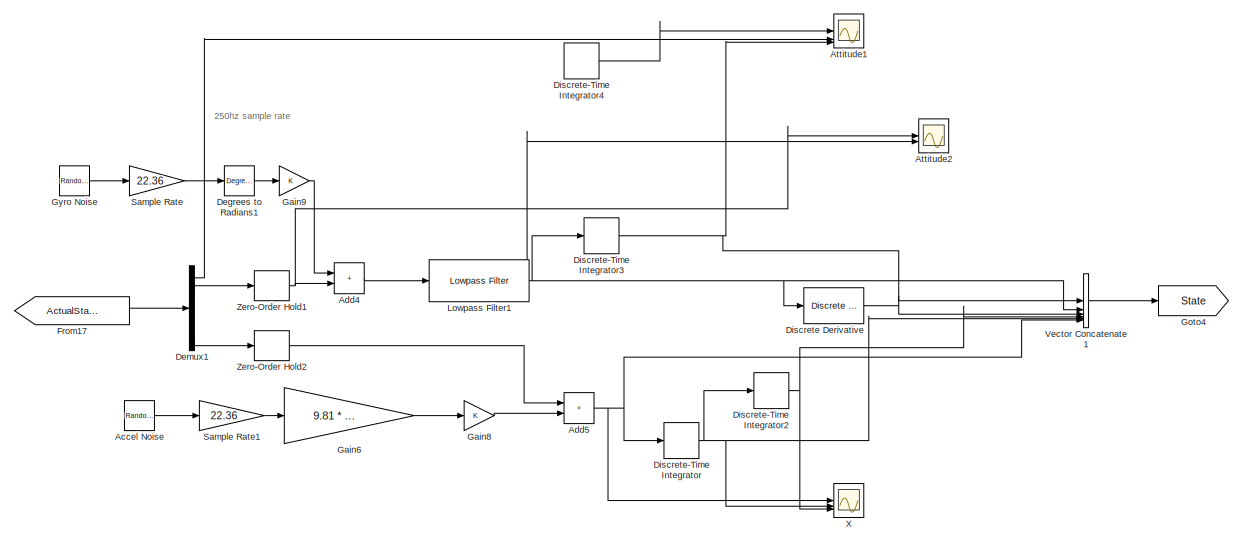
[diagram: root canvas - part 1/7, top center region]
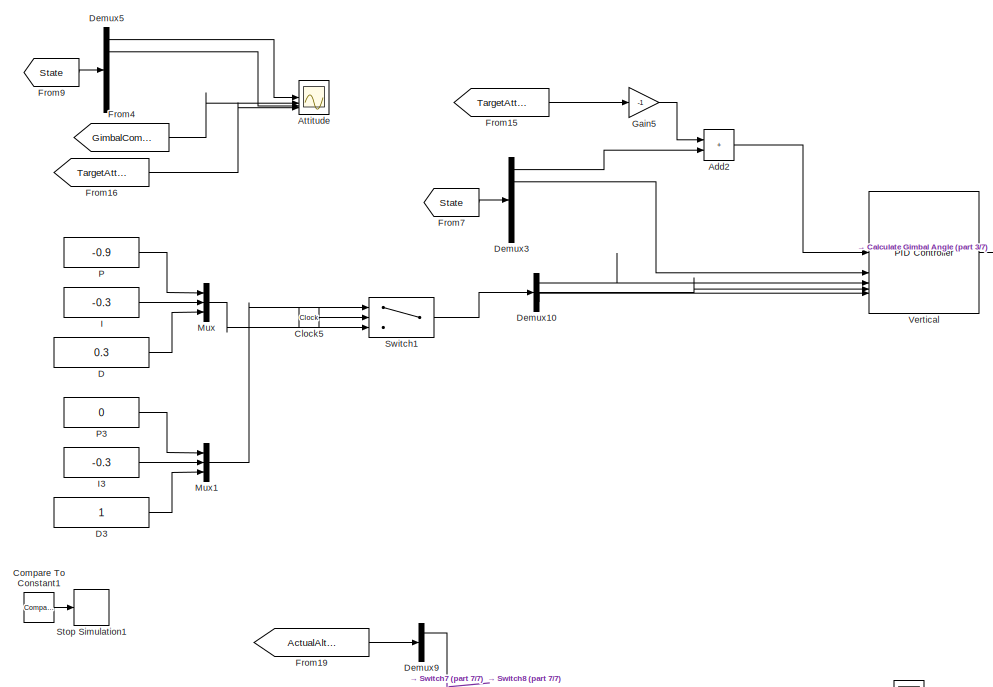
[diagram: root canvas - part 2/7, middle left region]
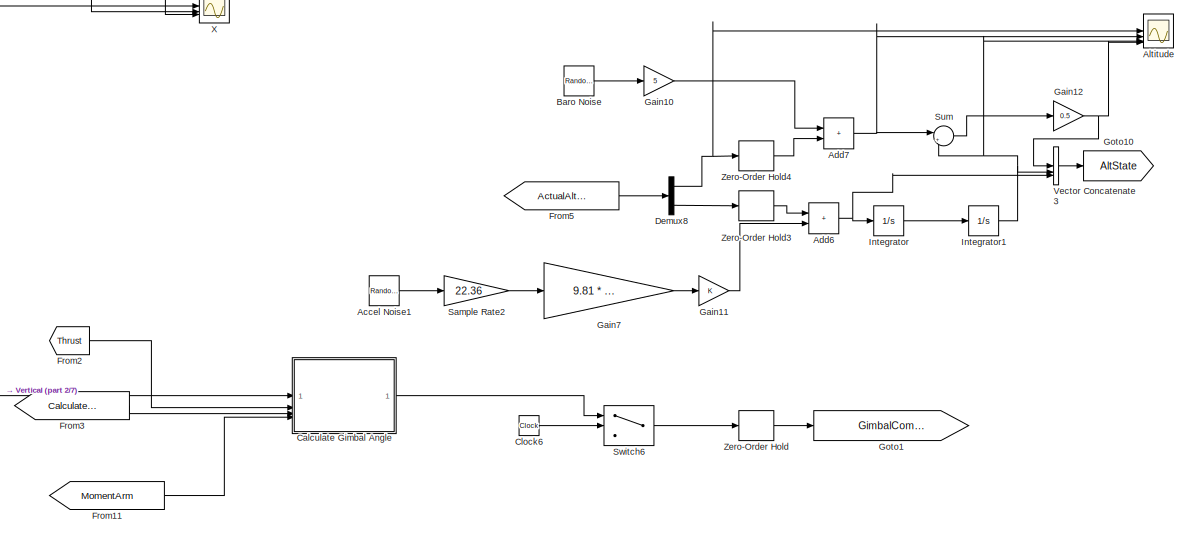
[diagram: root canvas - part 3/7, central region]
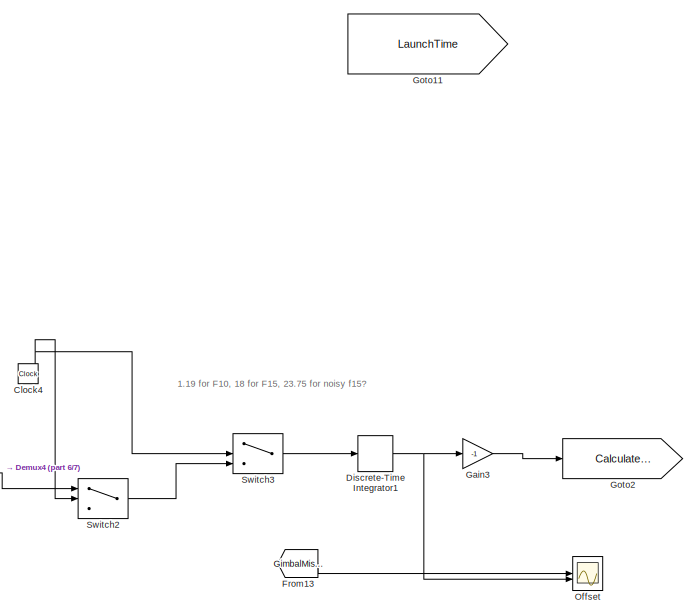
[diagram: root canvas - part 4/7, middle right region]
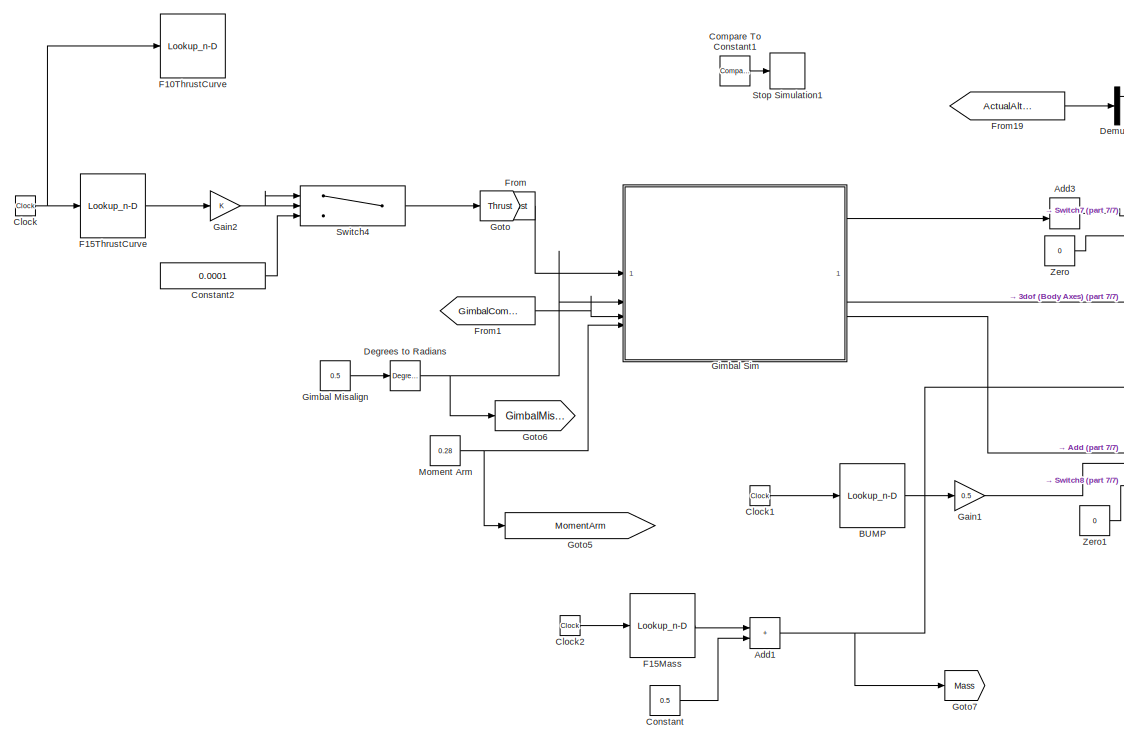
[diagram: root canvas - part 5/7, bottom left region]
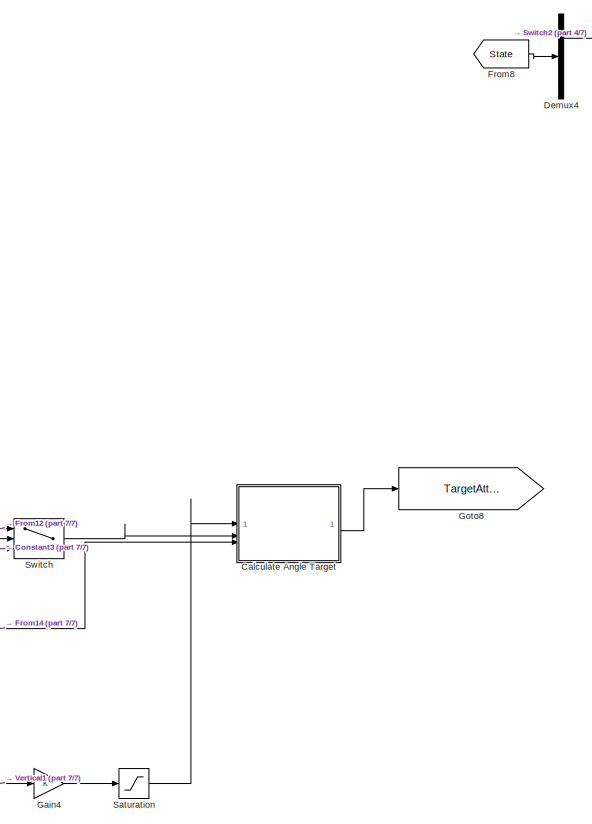
[diagram: root canvas - part 6/7, bottom right region]
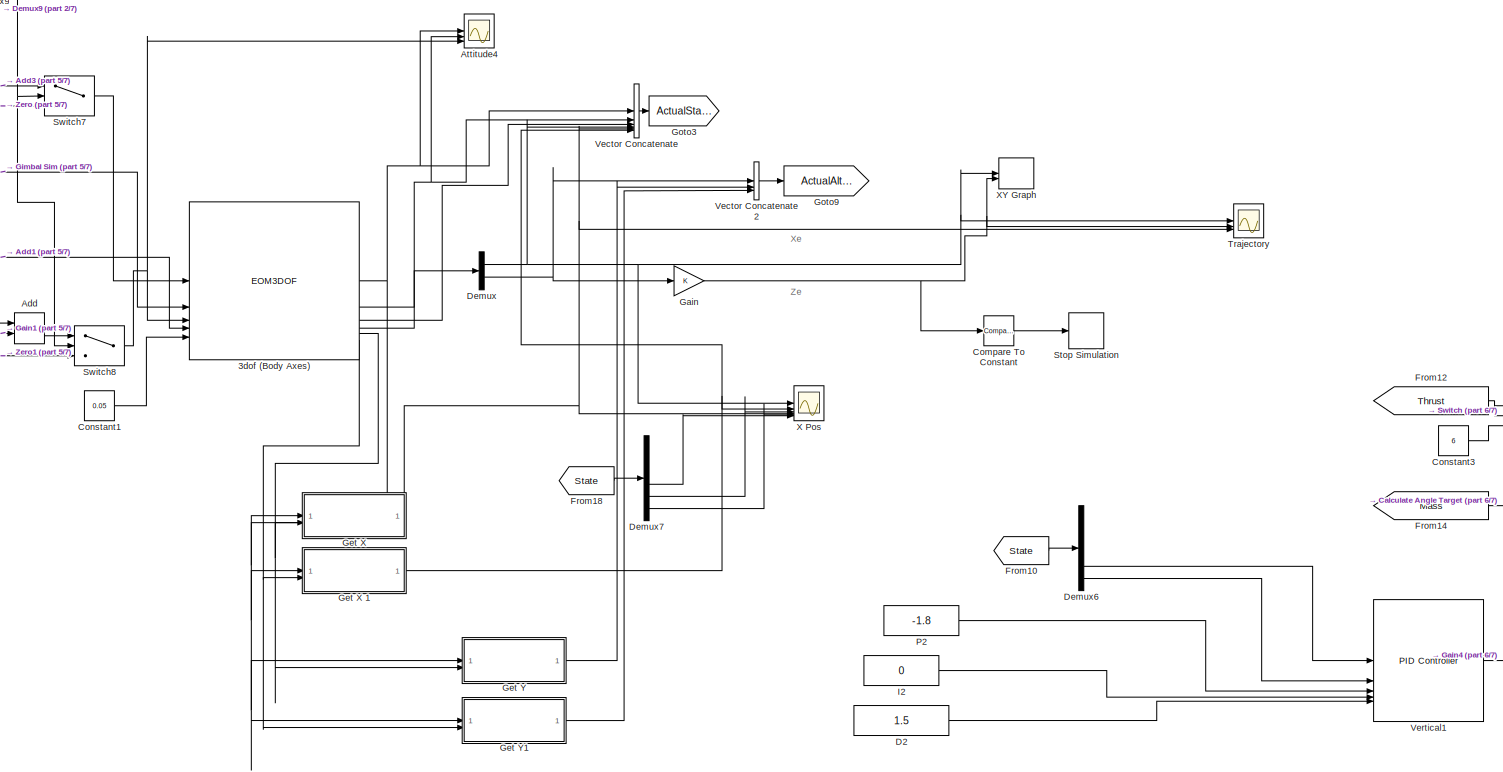
[diagram: root canvas - part 7/7, bottom center region]
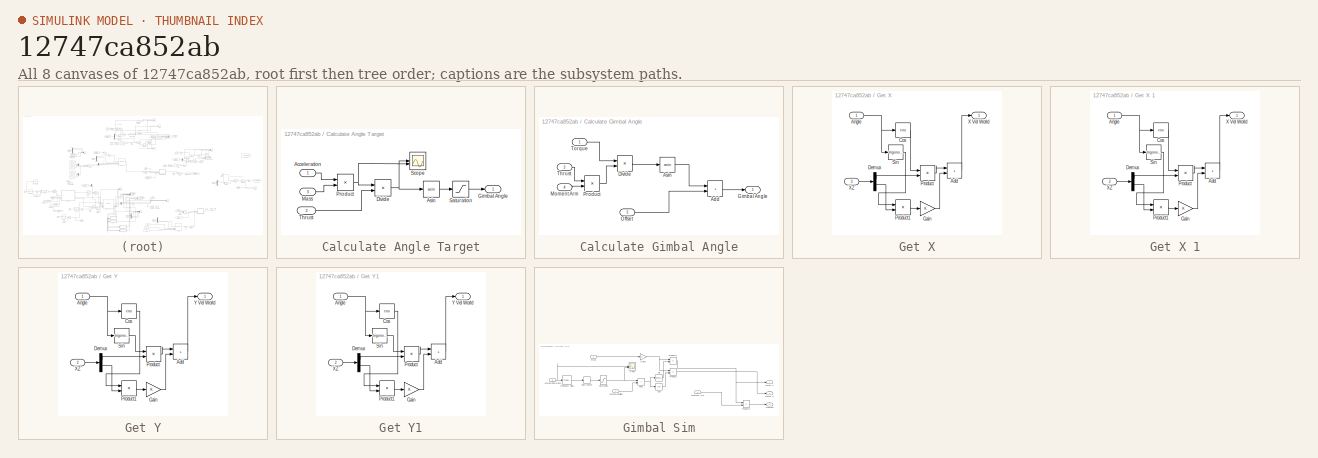
[diagram: thumbnail index - all 8 canvases of the model, root first then tree order]
MODEL slx_12747ca852ab
KIND model
CONFIG AbsTol = auto
CONFIG EnableMultiTasking = off
CONFIG FixedStep = 0.0001
CONFIG MaxStep = 0.0001
CONFIG MinStep = auto
CONFIG RelTol = 1e-3
CONFIG SampleTimeConstraint = Unconstrained
CONFIG SolverName = VariableStepAuto
CONFIG StartTime = 0.0
CONFIG StopTime = 30
WORKSPACE source: mxarray member
WORKSPACE Mass = 0.5
BLOCK [EOM3DOF] 3dof (Body Axes)
  Iyy = 0.05
  abi_flag = on
  g = -9.81
  mass = 0.5
  mtype = Custom Variable
  theta_ini = 0.09
  v_ini = 0
BLOCK [RandomNumber] Accel Noise
  SampleTime = 0.002
  Variance = 70
BLOCK [RandomNumber] Accel Noise1
  SampleTime = 0.002
  Variance = 70
BLOCK [Sum] Add
  IconShape = rectangular
BLOCK [Sum] Add1
  IconShape = rectangular
BLOCK [Sum] Add2
  IconShape = rectangular
BLOCK [Sum] Add3
  IconShape = rectangular
BLOCK [Sum] Add4
  IconShape = rectangular
BLOCK [Sum] Add5
  IconShape = rectangular
BLOCK [Sum] Add6
  IconShape = rectangular
BLOCK [Sum] Add7
  IconShape = rectangular
BLOCK [Scope] Altitude
  Floating = off
  NumInputPorts = 5
  ScopeSpecificationString = Simulink.scopes.TimeScopeBlockCfg('CurrentConfiguration', extmgr.ConfigurationSet(extmgr.Configuration('Core','General UI',true),extmgr.Configuration('Core','Source UI',true),extmgr.Configuration('Sources','WiredSimulink',true,'DataLoggingVariableName','ScopeData1'),extmgr.Configuration('Visuals','Time Domain',true,'SerializedDisplays',{struct('MinYLimReal','-43.92612','MaxYLimReal','276.00955','Y...<+1872ch>
BLOCK [Scope] Attitude
  Floating = off
  NumInputPorts = 5
  ScopeSpecificationString = Simulink.scopes.TimeScopeBlockCfg('CurrentConfiguration', extmgr.ConfigurationSet(extmgr.Configuration('Core','General UI',true),extmgr.Configuration('Core','Source UI',true),extmgr.Configuration('Sources','WiredSimulink',true,'DataLoggingVariableName','ScopeData1'),extmgr.Configuration('Visuals','Time Domain',true,'SerializedDisplays',{struct('MinYLimReal','-0.1549','MaxYLimReal','0.18817','YLabe...<+1913ch>
BLOCK [Scope] Attitude1
  Floating = off
  NumInputPorts = 5
  ScopeSpecificationString = Simulink.scopes.TimeScopeBlockCfg('CurrentConfiguration', extmgr.ConfigurationSet(extmgr.Configuration('Core','General UI',true),extmgr.Configuration('Core','Source UI',true),extmgr.Configuration('Sources','WiredSimulink',true,'DataLoggingVariableName','ScopeData1'),extmgr.Configuration('Visuals','Time Domain',true,'SerializedDisplays',{struct('MinYLimReal','-0.01504','MaxYLimReal','0.02183','YLab...<+1897ch>
BLOCK [Scope] Attitude2
  Floating = off
  NumInputPorts = 5
  ScopeSpecificationString = Simulink.scopes.TimeScopeBlockCfg('CurrentConfiguration', extmgr.ConfigurationSet(extmgr.Configuration('Core','General UI',true),extmgr.Configuration('Core','Source UI',true),extmgr.Configuration('Sources','WiredSimulink',true,'DataLoggingVariableName','ScopeData4'),extmgr.Configuration('Visuals','Time Domain',true,'SerializedDisplays',{struct('MinYLimReal','-0.09219','MaxYLimReal','0.12313','YLab...<+1925ch>
BLOCK [Scope] Attitude4
  Floating = off
  NumInputPorts = 5
  ScopeSpecificationString = Simulink.scopes.TimeScopeBlockCfg('CurrentConfiguration', extmgr.ConfigurationSet(extmgr.Configuration('Core','General UI',true),extmgr.Configuration('Core','Source UI',true),extmgr.Configuration('Sources','WiredSimulink',true,'DataLoggingVariableName','ScopeData1'),extmgr.Configuration('Visuals','Time Domain',true,'SerializedDisplays',{struct('MinYLimReal','-0.94117','MaxYLimReal','0.41177','YLab...<+1925ch>
BLOCK [Lookup_n-D] BUMP
  BreakpointsForDimension1 = [-5 -4 -3 -2 -1 0 1 1.1000000000000001 1.2 1.3 5]
  InputPortMap = u0
  InternalRulePriority = Speed
  NumberOfTableDimensions = 1
  RndMeth = Simplest
  Table = [0 0 0 0 0 0 0 0.28000000000000003 0.28000000000000003 0 0]
BLOCK [RandomNumber] Baro Noise
  SampleTime = 0.002
  Variance = 0.1
BLOCK [SubSystem] Calculate Angle Target
BLOCK [Inport] Calculate Angle Target/Acceleration
  IconDisplay = Port number and signal name
BLOCK [Trigonometry] Calculate Angle Target/Asin
  Operator = asin
BLOCK [Product] Calculate Angle Target/Divide
  Inputs = */
BLOCK [Outport] Calculate Angle Target/Gimbal Angle
  IconDisplay = Port number and signal name
BLOCK [Inport] Calculate Angle Target/Mass
  IconDisplay = Port number and signal name
  Port = 3
BLOCK [Product] Calculate Angle Target/Product
BLOCK [Saturate] Calculate Angle Target/Saturation
  LowerLimit = -0.4
  UpperLimit = 0.4
BLOCK [Scope] Calculate Angle Target/Scope
  Floating = off
  NumInputPorts = 2
  ScopeSpecificationString = Simulink.scopes.TimeScopeBlockCfg('CurrentConfiguration', extmgr.ConfigurationSet(extmgr.Configuration('Core','General UI',true),extmgr.Configuration('Core','Source UI',true),extmgr.Configuration('Sources','WiredSimulink',true,'DataLoggingVariableName','ScopeData1'),extmgr.Configuration('Visuals','Time Domain',true,'SerializedDisplays',{struct('MinYLimReal','-5.96488','MaxYLimReal','5.56091','YLab...<+1841ch>
BLOCK [Inport] Calculate Angle Target/Thrust
  IconDisplay = Port number and signal name
  Port = 2
BLOCK [SubSystem] Calculate Gimbal Angle
BLOCK [Sum] Calculate Gimbal Angle/Add
  IconShape = rectangular
BLOCK [Trigonometry] Calculate Gimbal Angle/Asin
  Operator = asin
BLOCK [Product] Calculate Gimbal Angle/Divide
  Inputs = */
BLOCK [Outport] Calculate Gimbal Angle/Gimbal Angle
  IconDisplay = Port number and signal name
BLOCK [Inport] Calculate Gimbal Angle/Moment Arm
  IconDisplay = Port number and signal name
  Port = 4
BLOCK [Inport] Calculate Gimbal Angle/Offset
  IconDisplay = Port number and signal name
  Port = 3
BLOCK [Product] Calculate Gimbal Angle/Product
BLOCK [Inport] Calculate Gimbal Angle/Thrust
  IconDisplay = Port number and signal name
  Port = 2
BLOCK [Inport] Calculate Gimbal Angle/Torque
  IconDisplay = Port number and signal name
BLOCK [Clock] Clock
BLOCK [Clock] Clock1
BLOCK [Clock] Clock2
BLOCK [Clock] Clock4
BLOCK [Clock] Clock5
BLOCK [Clock] Clock6
BLOCK [Reference] Compare To Constant  REF=simulink/Logic and Bit
Operations/Compare
To Constant
  SourceBlock = simulink/Logic and Bit\nOperations/Compare\nTo Constant
  SourceType = Compare To Constant
BLOCK [Reference] Compare To Constant1  REF=simulink/Logic and Bit
Operations/Compare
To Constant
  SourceBlock = simulink/Logic and Bit\nOperations/Compare\nTo Constant
  SourceType = Compare To Constant
BLOCK [Constant] Constant
  Value = 0.5
BLOCK [Constant] Constant1
  Value = 0.05
BLOCK [Constant] Constant2
  Value = 0.0001
BLOCK [Constant] Constant3
  Value = 6
BLOCK [Constant] D
  Value = 0.3
BLOCK [Constant] D2
  Value = 1.5
BLOCK [Constant] D3
BLOCK [Reference] Degrees to Radians  REF=simulink_extras/Transformations/Degrees to
Radians
  SourceBlock = simulink_extras/Transformations/Degrees to\nRadians
  SourceType = DegreesToRadians
BLOCK [Reference] Degrees to Radians1  REF=simulink_extras/Transformations/Degrees to
Radians
  SourceBlock = simulink_extras/Transformations/Degrees to\nRadians
  SourceType = DegreesToRadians
BLOCK [Demux] Demux
  Outputs = 2
BLOCK [Demux] Demux1
  Outputs = 6
BLOCK [Demux] Demux10
  Outputs = 3
BLOCK [Demux] Demux3
  Outputs = 6
BLOCK [Demux] Demux4
  Outputs = 6
BLOCK [Demux] Demux5
  Outputs = 6
BLOCK [Demux] Demux6
  Outputs = 6
BLOCK [Demux] Demux7
  Outputs = 6
BLOCK [Demux] Demux8
  Outputs = 3
BLOCK [Demux] Demux9
  Outputs = 3
BLOCK [Reference] Discrete Derivative  REF=simulink/Discrete/Discrete Derivative
  SourceBlock = simulink/Discrete/Discrete Derivative
  SourceType = Discrete Derivative
BLOCK [DiscreteIntegrator] Discrete-Time Integrator
  ICPrevOutput = DiscIntNeverNeededParam
  ICPrevScaledInput = DiscIntNeverNeededParam
  InitialConditionSetting = Auto
  SampleTime = 0.01
BLOCK [DiscreteIntegrator] Discrete-Time Integrator1
  ICPrevOutput = DiscIntNeverNeededParam
  ICPrevScaledInput = DiscIntNeverNeededParam
  InitialConditionSetting = Auto
  SampleTime = 0.01
  gainval = 20
BLOCK [DiscreteIntegrator] Discrete-Time Integrator2
  ICPrevOutput = DiscIntNeverNeededParam
  ICPrevScaledInput = DiscIntNeverNeededParam
  InitialConditionSetting = Auto
  SampleTime = 0.01
BLOCK [DiscreteIntegrator] Discrete-Time Integrator3
  ICPrevOutput = DiscIntNeverNeededParam
  ICPrevScaledInput = DiscIntNeverNeededParam
  InitialCondition = 0.09
  InitialConditionSetting = Auto
  SampleTime = 0.01
BLOCK [DiscreteIntegrator] Discrete-Time Integrator4
  ICPrevOutput = DiscIntNeverNeededParam
  ICPrevScaledInput = DiscIntNeverNeededParam
  InitialConditionSetting = Auto
  SampleTime = 0.01
BLOCK [Lookup_n-D] F10ThrustCurve
  BreakpointsForDimension1 = [0.015;0.077;0.201;0.31;0.464;0.573;0.789;1.068;1.393;1.718;2.166;2.677;3.311;3.683;3.791;4.101;4.658;5.168;5.725;6.112;6.329;6.499;6.685;6.778;6.917;7.025;7.13]
  InputPortMap = u0
  InternalRulePriority = Speed
  NumberOfTableDimensions = 1
  RndMeth = Simplest
  Table = [28.22;26.082;24.934;22.806;20.183;17.886;16.075;13.946;12.63;11.155;9.843999999999999;9.515000000000001;9.186999999999999;8.859;9.679;9.679;9.515000000000001;9.023;9.023;8.531000000000001;8.859;7.546;5.742;4.921;2.625;1.312;-0.001]
BLOCK [Lookup_n-D] F15Mass
  BreakpointsForDimension1 = [0;0.14799999999999999;0.22800000000000001;0.29399999999999998;0.35299999999999998;0.38200000000000001;0.41899999999999998;0.47699999999999998;0.52000000000000002;0.59299999999999997;0.68799999999999994;0.85499999999999998;1.0369999999999999;1.2050000000000001;1.423;1.452;1.5029999999999999;1.736;1.9550000000000001;2.21;2.4940000000000002;2.7629999999999999;3.1200000000000001;3.3820000000000001;3....<+58ch>
  InputPortMap = u0
  InternalRulePriority = Speed
  NumberOfTableDimensions = 1
  RndMeth = Simplest
  Table = [0.102;0.101316;0.100354;0.09921099999999999;0.09790500000000001;0.097151;0.096077;0.09438199999999999;0.09324;0.091477;0.089374;0.085969;0.082485;0.079399;0.0755;0.07496700000000001;0.07402599999999999;0.069882;0.066051;0.061665;0.056863;0.052445;0.046687;0.042513;0.042215;0.042095;0.042;0.042]
BLOCK [Lookup_n-D] F15ThrustCurve
  BreakpointsForDimension1 = [0;0.14799999999999999;0.22800000000000001;0.29399999999999998;0.35299999999999998;0.38200000000000001;0.41899999999999998;0.47699999999999998;0.52000000000000002;0.59299999999999997;0.68799999999999994;0.85499999999999998;1.0369999999999999;1.2050000000000001;1.423;1.452;1.5029999999999999;1.736;1.9550000000000001;2.21;2.4940000000000002;2.7629999999999999;3.1200000000000001;3.3820000000000001;3....<+58ch>
  InputPortMap = u0
  InternalRulePriority = Speed
  NumberOfTableDimensions = 1
  RndMeth = Simplest
  Table = [0;7.6379999999999999;12.253;16.390999999999998;20.210000000000001;22.756;25.260000000000002;23.074000000000002;20.844999999999999;19.093;17.5;16.225000000000001;15.427;14.948;14.627000000000001;15.741;14.785;14.622999999999999;14.303000000000001;14.141;13.819000000000001;13.337999999999999;13.334;13.013;9.3520000000000003;4.8949999999999996;-0.001;-0.001]
BLOCK [From] From
  GotoTag = Thrust
BLOCK [From] From1
  GotoTag = GimbalCommand
BLOCK [From] From10
  GotoTag = State
BLOCK [From] From11
  GotoTag = MomentArm
BLOCK [From] From12
  GotoTag = Thrust
BLOCK [From] From13
  GotoTag = GimbalMisalign
BLOCK [From] From14
  GotoTag = Mass
BLOCK [From] From15
  GotoTag = TargetAttitude
BLOCK [From] From16
  GotoTag = TargetAttitude
BLOCK [From] From17
  GotoTag = ActualState
BLOCK [From] From18
  GotoTag = State
BLOCK [From] From19
  GotoTag = ActualAltState
BLOCK [From] From2
  GotoTag = Thrust
BLOCK [From] From3
  GotoTag = CalculatedOffset
BLOCK [From] From4
  GotoTag = GimbalCommand
BLOCK [From] From5
  GotoTag = ActualAltState
BLOCK [From] From7
  GotoTag = State
BLOCK [From] From8
  GotoTag = State
BLOCK [From] From9
  GotoTag = State
BLOCK [Gain] Gain
BLOCK [Gain] Gain1
  Gain = 0.5
BLOCK [Gain] Gain10
  Gain = 5
BLOCK [Gain] Gain11
BLOCK [Gain] Gain12
  Gain = 0.5
BLOCK [Gain] Gain2
BLOCK [Gain] Gain3
  Gain = -1
BLOCK [Gain] Gain4
BLOCK [Gain] Gain5
  Gain = -1
BLOCK [Gain] Gain6
  Gain = 9.81 * 1/10000000
BLOCK [Gain] Gain7
  Gain = 9.81 * 1/1000000
BLOCK [Gain] Gain8
BLOCK [Gain] Gain9
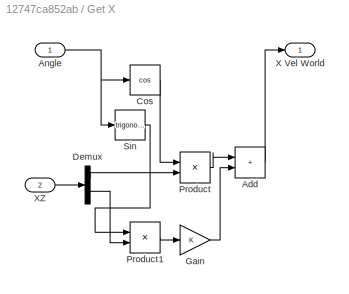
BLOCK [SubSystem] Get X
BLOCK [SubSystem] Get X 1
BLOCK [Sum] Get X 1/Add
  IconShape = rectangular
BLOCK [Inport] Get X 1/Angle
BLOCK [Trigonometry] Get X 1/Cos
  Operator = cos
BLOCK [Demux] Get X 1/Demux
  Outputs = 2
BLOCK [Gain] Get X 1/Gain
BLOCK [Product] Get X 1/Product
BLOCK [Product] Get X 1/Product1
BLOCK [Trigonometry] Get X 1/Sin
BLOCK [Outport] Get X 1/X Vel World
BLOCK [Inport] Get X 1/XZ
  Port = 2
BLOCK [Sum] Get X/Add
  IconShape = rectangular
BLOCK [Inport] Get X/Angle
BLOCK [Trigonometry] Get X/Cos
  Operator = cos
BLOCK [Demux] Get X/Demux
  Outputs = 2
BLOCK [Gain] Get X/Gain
BLOCK [Product] Get X/Product
BLOCK [Product] Get X/Product1
BLOCK [Trigonometry] Get X/Sin
BLOCK [Outport] Get X/X Vel World
BLOCK [Inport] Get X/XZ
  Port = 2
BLOCK [SubSystem] Get Y
BLOCK [Sum] Get Y/Add
  IconShape = rectangular
BLOCK [Inport] Get Y/Angle
BLOCK [Trigonometry] Get Y/Cos
  Operator = cos
BLOCK [Demux] Get Y/Demux
  Outputs = 2
BLOCK [Gain] Get Y/Gain
BLOCK [Product] Get Y/Product
BLOCK [Product] Get Y/Product1
BLOCK [Trigonometry] Get Y/Sin
BLOCK [Inport] Get Y/XZ
  Port = 2
BLOCK [Outport] Get Y/Y Vel World
BLOCK [SubSystem] Get Y1
BLOCK [Sum] Get Y1/Add
  IconShape = rectangular
BLOCK [Inport] Get Y1/Angle
BLOCK [Trigonometry] Get Y1/Cos
  Operator = cos
BLOCK [Demux] Get Y1/Demux
  Outputs = 2
BLOCK [Gain] Get Y1/Gain
BLOCK [Product] Get Y1/Product
BLOCK [Product] Get Y1/Product1
BLOCK [Trigonometry] Get Y1/Sin
BLOCK [Inport] Get Y1/XZ
  Port = 2
BLOCK [Outport] Get Y1/Y Vel World
BLOCK [Constant] Gimbal Misalign
  Value = 0.5
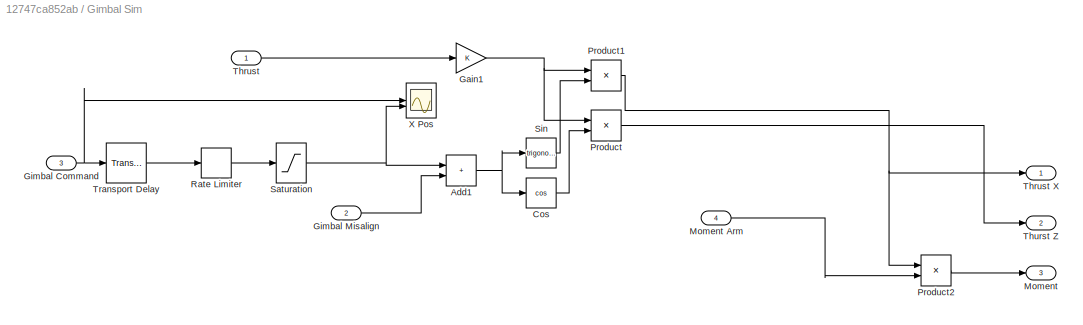
BLOCK [SubSystem] Gimbal Sim
BLOCK [Sum] Gimbal Sim/Add1
  IconShape = rectangular
BLOCK [Trigonometry] Gimbal Sim/Cos
  Operator = cos
BLOCK [Gain] Gimbal Sim/Gain1
BLOCK [Inport] Gimbal Sim/Gimbal Command
  Port = 3
BLOCK [Inport] Gimbal Sim/Gimbal Misalign
  Port = 2
BLOCK [Outport] Gimbal Sim/Moment
  Port = 3
BLOCK [Inport] Gimbal Sim/Moment Arm
  Port = 4
BLOCK [Product] Gimbal Sim/Product
BLOCK [Product] Gimbal Sim/Product1
BLOCK [Product] Gimbal Sim/Product2
BLOCK [RateLimiter] Gimbal Sim/Rate Limiter
  FallingSlewLimit = -0.9
  RisingSlewLimit = 0.9
BLOCK [Saturate] Gimbal Sim/Saturation
  LowerLimit = -0.0872665
  UpperLimit = 0.0872665
BLOCK [Trigonometry] Gimbal Sim/Sin
BLOCK [Inport] Gimbal Sim/Thrust
  IconDisplay = Port number and signal name
BLOCK [Outport] Gimbal Sim/Thrust X
BLOCK [Outport] Gimbal Sim/Thurst Z
  Port = 2
BLOCK [TransportDelay] Gimbal Sim/Transport Delay
  DelayTime = 0.03
BLOCK [Scope] Gimbal Sim/X Pos
  Floating = off
  NumInputPorts = 6
  ScopeSpecificationString = Simulink.scopes.TimeScopeBlockCfg('CurrentConfiguration', extmgr.ConfigurationSet(extmgr.Configuration('Core','General UI',true),extmgr.Configuration('Core','Source UI',true),extmgr.Configuration('Sources','WiredSimulink',true,'DataLoggingVariableName','ScopeData2'),extmgr.Configuration('Visuals','Time Domain',true,'SerializedDisplays',{struct('MinYLimReal','-1.16945','MaxYLimReal','1.09335','YLab...<+1896ch>
BLOCK [Goto] Goto
  GotoTag = Thrust
BLOCK [Goto] Goto1
  GotoTag = GimbalCommand
BLOCK [Goto] Goto10
  GotoTag = AltState
BLOCK [Goto] Goto11
  GotoTag = LaunchTime
BLOCK [Goto] Goto2
  GotoTag = CalculatedOffset
BLOCK [Goto] Goto3
  GotoTag = ActualState
BLOCK [Goto] Goto4
  GotoTag = State
BLOCK [Goto] Goto5
  GotoTag = MomentArm
BLOCK [Goto] Goto6
  GotoTag = GimbalMisalign
BLOCK [Goto] Goto7
  GotoTag = Mass
BLOCK [Goto] Goto8
  GotoTag = TargetAttitude
BLOCK [Goto] Goto9
  GotoTag = ActualAltState
BLOCK [RandomNumber] Gyro Noise
  SampleTime = 0.002
  Variance = 0.0028
BLOCK [Constant] I
  Value = -0.3
  VectorParams1D = off
BLOCK [Constant] I2
  Value = 0
  VectorParams1D = off
BLOCK [Constant] I3
  Value = -0.3
  VectorParams1D = off
BLOCK [Integrator] Integrator
BLOCK [Integrator] Integrator1
BLOCK [Reference] Lowpass Filter1  REF=dspfdesign/Lowpass Filter
  SourceBlock = dspfdesign/Lowpass Filter
  SourceType = dsp.simulink.LowpassFilter
BLOCK [Constant] Moment Arm
  Value = 0.28
BLOCK [Mux] Mux
  DisplayOption = bar
  Inputs = 3
BLOCK [Mux] Mux1
  DisplayOption = bar
  Inputs = 3
BLOCK [Scope] Offset
  Floating = off
  NumInputPorts = 5
  ScopeSpecificationString = Simulink.scopes.TimeScopeBlockCfg('CurrentConfiguration', extmgr.ConfigurationSet(extmgr.Configuration('Core','General UI',true),extmgr.Configuration('Core','Source UI',true),extmgr.Configuration('Sources','WiredSimulink',true,'DataLoggingVariableName','ScopeData2'),extmgr.Configuration('Visuals','Time Domain',true,'SerializedDisplays',{struct('MinYLimReal','-0.00114','MaxYLimReal','0.0103','YLabe...<+1933ch>
BLOCK [Constant] P
  Value = -0.9
BLOCK [Constant] P2
  Value = -1.8
BLOCK [Constant] P3
  Value = 0
BLOCK [Gain] Sample Rate
  Gain = 22.36
BLOCK [Gain] Sample Rate1
  Gain = 22.36
BLOCK [Gain] Sample Rate2
  Gain = 22.36
BLOCK [Saturate] Saturation
  LowerLimit = -8
  UpperLimit = 8
BLOCK [Stop] Stop Simulation
BLOCK [Stop] Stop Simulation1
BLOCK [Sum] Sum
  Inputs = |++
BLOCK [Switch] Switch
  Criteria = u2 > Threshold
  InputSameDT = off
  SaturateOnIntegerOverflow = off
  Threshold = 6
BLOCK [Switch] Switch1
  Criteria = u2 > Threshold
  InputSameDT = off
  SaturateOnIntegerOverflow = off
  Threshold = 2.85
BLOCK [Switch] Switch2
  Criteria = u2 > Threshold
  InputSameDT = off
  SaturateOnIntegerOverflow = off
  Threshold = 0.6
BLOCK [Switch] Switch3
  Criteria = u2 > Threshold
  InputSameDT = off
  SaturateOnIntegerOverflow = off
  Threshold = 0.7
BLOCK [Switch] Switch4
  Criteria = u2 > Threshold
  InputSameDT = off
  SaturateOnIntegerOverflow = off
  Threshold = 0.0001
BLOCK [Switch] Switch6
  Criteria = u2 > Threshold
  InputSameDT = off
  SaturateOnIntegerOverflow = off
  Threshold = 0.7
BLOCK [Switch] Switch7
  Criteria = u2 > Threshold
  InputSameDT = off
  SaturateOnIntegerOverflow = off
  Threshold = 2
BLOCK [Switch] Switch8
  Criteria = u2 > Threshold
  InputSameDT = off
  SaturateOnIntegerOverflow = off
  Threshold = 2
BLOCK [Scope] Trajectory
  Floating = off
  NumInputPorts = 5
  ScopeSpecificationString = Simulink.scopes.TimeScopeBlockCfg('CurrentConfiguration', extmgr.ConfigurationSet(extmgr.Configuration('Core','General UI',true),extmgr.Configuration('Core','Source UI',true),extmgr.Configuration('Sources','WiredSimulink',true,'DataLoggingVariableName','ScopeData1'),extmgr.Configuration('Visuals','Time Domain',true,'SerializedDisplays',{struct('MinYLimReal','-0.26628','MaxYLimReal','2.3965','YLabe...<+4154ch>
BLOCK [Concatenate] Vector Concatenate
  NumInputs = 6
BLOCK [Concatenate] Vector Concatenate1
  NumInputs = 6
BLOCK [Concatenate] Vector Concatenate2
  NumInputs = 3
BLOCK [Concatenate] Vector Concatenate3
  NumInputs = 3
BLOCK [Reference] Vertical  REF=slpidlib/PID Controller
  LibrarySourceBlock = simulink/Discrete/Discrete PID Controller
  SourceBlock = slpidlib/PID Controller
  SourceType = PID 1dof
BLOCK [Reference] Vertical1  REF=slpidlib/PID Controller
  LibrarySourceBlock = simulink/Discrete/Discrete PID Controller
  SourceBlock = slpidlib/PID Controller
  SourceType = PID 1dof
BLOCK [Scope] X
  Floating = off
  NumInputPorts = 5
  ScopeSpecificationString = Simulink.scopes.TimeScopeBlockCfg('CurrentConfiguration', extmgr.ConfigurationSet(extmgr.Configuration('Core','General UI',true),extmgr.Configuration('Core','Source UI',true),extmgr.Configuration('Sources','WiredSimulink',true,'DataLoggingVariableName','ScopeData5'),extmgr.Configuration('Visuals','Time Domain',true,'SerializedDisplays',{struct('MinYLimReal','-0.3281','MaxYLimReal','0.56115','YLabe...<+1889ch>
BLOCK [Scope] X Pos
  Floating = off
  NumInputPorts = 6
  ScopeSpecificationString = Simulink.scopes.TimeScopeBlockCfg('CurrentConfiguration', extmgr.ConfigurationSet(extmgr.Configuration('Core','General UI',true),extmgr.Configuration('Core','Source UI',true),extmgr.Configuration('Sources','WiredSimulink',true,'DataLoggingVariableName','ScopeData3'),extmgr.Configuration('Visuals','Time Domain',true,'SerializedDisplays',{struct('MinYLimReal','-3.27849','MaxYLimReal','4.5961','YLabe...<+1893ch>
BLOCK [Record] XY Graph
  CompatibilityTag = XY
  FileSettingsInternal = {"entries":[{"content":{"excelSettings":{"content":{},"type":"Streamout.ExcelSettings"}},"type":"Streamout.FileSettingStorage","uuid":""}],"packageUris":["http:\/\/schema.mathworks.com\/mf0\/streamout_blocks\/R2020a"],"version":"1.0"}
  Layout = [1 1]
  SignalsInternal = {"entries":[{"content":{"signals":[{"content":{"blockPath":[],"dimensions":[1],"domain":"","lineColor":"#a2142f","plots":[ 1 ],"port":1,"signalID":1,"signalName":"Demux:1"},"type":"RecordBlkView.Signal","uuid":""},{"content":{"blockPath":[],"dimensions":[1],"domain":"","lineColor":"#139fff","plots":[ 1 ],"port":2,"signalID":2,"signalName":"Gain"},"type":"RecordBlkView.Signal","uuid":""}]},"type":"...<+135ch>
  VisualizationBindings = {"xyplotplugin":{"info":[{"series":[{"bindingParametersList":[{"parameter":"X-Axis","signalID":1,"signalName":"Demux:1"},{"parameter":"Y-Axis","signalID":2,"signalName":"Gain"}],"seriesID":0}],"subplotID":1}]}}
BLOCK [Constant] Zero
  OutDataTypeStr = Inherit: Inherit via back propagation
  Value = 0
BLOCK [ZeroOrderHold] Zero-Order Hold
  SampleTime = 0.02
BLOCK [ZeroOrderHold] Zero-Order Hold1
  SampleTime = 0.002
BLOCK [ZeroOrderHold] Zero-Order Hold2
  SampleTime = 0.002
BLOCK [ZeroOrderHold] Zero-Order Hold3
  SampleTime = 0.002
BLOCK [ZeroOrderHold] Zero-Order Hold4
  SampleTime = 0.002
BLOCK [Constant] Zero1
  OutDataTypeStr = Inherit: Inherit via back propagation
  Value = 0
ANNOTATION (root): 1.19 for F10, 18 for F15, 23.75 for noisy f15?
ANNOTATION (root): 250hz sample rate
ANNOTATION (root): Xe
ANNOTATION (root): Ze
NET 3dof (Body Axes):1 -> Attitude4:1, Get X 1:1, Get X:1, Get Y1:1, Get Y:1, Vector Concatenate:1
NET 3dof (Body Axes):2 -> Attitude4:2, Vector Concatenate:2
LINE 3dof (Body Axes):3 -> Vector Concatenate:3
LINE 3dof (Body Axes):4 -> Demux:1
NET 3dof (Body Axes):5 -> Get X:2, Get Y:2
NET 3dof (Body Axes):7 -> Get X 1:2, Get Y1:2
LINE Accel Noise1:1 -> Sample Rate2:1
LINE Accel Noise:1 -> Sample Rate1:1
NET Add1:1 -> 3dof (Body Axes):4, Goto7:1
LINE Add2:1 -> Vertical:1
LINE Add3:1 -> Switch7:1
LINE Add4:1 -> Lowpass Filter1:1
NET Add5:1 -> Discrete-Time Integrator:1, Vector Concatenate1:6, X:1
NET Add6:1 -> Integrator:1, Vector Concatenate3:3
NET Add7:1 -> Altitude:2, Sum:1
LINE Add:1 -> Switch8:1
LINE BUMP:1 -> Gain1:1
LINE Baro Noise:1 -> Gain10:1
LINE Calculate Angle Target/Acceleration:1 -> Calculate Angle Target/Product:1
LINE Calculate Angle Target/Asin:1 -> Calculate Angle Target/Saturation:1
NET Calculate Angle Target/Divide:1 -> Calculate Angle Target/Asin:1, Calculate Angle Target/Scope:1
LINE Calculate Angle Target/Mass:1 -> Calculate Angle Target/Product:2
NET Calculate Angle Target/Product:1 -> Calculate Angle Target/Divide:1, Calculate Angle Target/Scope:2
LINE Calculate Angle Target/Saturation:1 -> Calculate Angle Target/Gimbal Angle:1
LINE Calculate Angle Target/Thrust:1 -> Calculate Angle Target/Divide:2
LINE Calculate Angle Target:1 -> Goto8:1
LINE Calculate Gimbal Angle/Add:1 -> Calculate Gimbal Angle/Gimbal Angle:1
LINE Calculate Gimbal Angle/Asin:1 -> Calculate Gimbal Angle/Add:1
LINE Calculate Gimbal Angle/Divide:1 -> Calculate Gimbal Angle/Asin:1
LINE Calculate Gimbal Angle/Moment Arm:1 -> Calculate Gimbal Angle/Product:2
LINE Calculate Gimbal Angle/Offset:1 -> Calculate Gimbal Angle/Add:2
LINE Calculate Gimbal Angle/Product:1 -> Calculate Gimbal Angle/Divide:2
LINE Calculate Gimbal Angle/Thrust:1 -> Calculate Gimbal Angle/Product:1
LINE Calculate Gimbal Angle/Torque:1 -> Calculate Gimbal Angle/Divide:1
LINE Calculate Gimbal Angle:1 -> Switch6:1
LINE Clock1:1 -> BUMP:1
LINE Clock2:1 -> F15Mass:1
NET Clock4:1 -> Switch2:2, Switch3:2
LINE Clock5:1 -> Switch1:2
LINE Clock6:1 -> Switch6:2
NET Clock:1 -> F10ThrustCurve:1, F15ThrustCurve:1
LINE Compare To Constant1:1 -> Stop Simulation1:1
LINE Compare To Constant:1 -> Stop Simulation:1
LINE Constant1:1 -> 3dof (Body Axes):6
LINE Constant2:1 -> Switch4:3
LINE Constant3:1 -> Switch:3
LINE Constant:1 -> Add1:2
LINE D2:1 -> Vertical1:5
LINE D3:1 -> Mux1:3
LINE D:1 -> Mux:3
LINE Degrees to Radians1:1 -> Gain9:1
NET Degrees to Radians:1 -> Gimbal Sim:2, Goto6:1
LINE Demux10:1 -> Vertical:3
LINE Demux10:2 -> Vertical:4
LINE Demux10:3 -> Vertical:5
LINE Demux1:1 -> Attitude1:3
LINE Demux1:2 -> Zero-Order Hold1:1
LINE Demux1:6 -> Zero-Order Hold2:1
LINE Demux3:1 -> Add2:2
LINE Demux3:2 -> Vertical:2
LINE Demux4:2 -> Switch2:1
LINE Demux5:1 -> Attitude:1
LINE Demux5:2 -> Attitude:3
LINE Demux6:5 -> Vertical1:1
LINE Demux6:6 -> Vertical1:2
LINE Demux7:4 -> X Pos:6
LINE Demux7:5 -> X Pos:3
LINE Demux7:6 -> X Pos:5
NET Demux8:1 -> Altitude:1, Zero-Order Hold4:1
LINE Demux8:3 -> Zero-Order Hold3:1
NET Demux9:1 -> Switch7:2, Switch8:2
NET Demux:1 -> Trajectory:1, Vector Concatenate:4, X Pos:1, XY Graph:1
NET Demux:2 -> Gain:1, Vector Concatenate2:1
LINE Discrete Derivative:1 -> Vector Concatenate1:3
NET Discrete-Time Integrator1:1 -> Gain3:1, Offset:2
NET Discrete-Time Integrator2:1 -> Vector Concatenate1:4, X:3
NET Discrete-Time Integrator3:1 -> Attitude1:5, Vector Concatenate1:1
LINE Discrete-Time Integrator4:1 -> Attitude1:1
NET Discrete-Time Integrator:1 -> Discrete-Time Integrator2:1, Vector Concatenate1:5, X:2
LINE F15Mass:1 -> Add1:1
LINE F15ThrustCurve:1 -> Gain2:1
LINE From10:1 -> Demux6:1
LINE From11:1 -> Calculate Gimbal Angle:4
NET From12:1 -> Switch:1, Switch:2
LINE From13:1 -> Offset:1
LINE From14:1 -> Calculate Angle Target:3
LINE From15:1 -> Gain5:1
LINE From16:1 -> Attitude:4
LINE From17:1 -> Demux1:1
LINE From18:1 -> Demux7:1
LINE From19:1 -> Demux9:1
LINE From1:1 -> Gimbal Sim:3
LINE From2:1 -> Calculate Gimbal Angle:2
LINE From3:1 -> Calculate Gimbal Angle:3
LINE From4:1 -> Attitude:2
LINE From5:1 -> Demux8:1
LINE From7:1 -> Demux3:1
LINE From8:1 -> Demux4:1
LINE From9:1 -> Demux5:1
LINE From:1 -> Gimbal Sim:1
LINE Gain10:1 -> Add7:1
LINE Gain11:1 -> Add6:2
NET Gain12:1 -> Altitude:5, Vector Concatenate3:1
LINE Gain1:1 -> Add:2
NET Gain2:1 -> Switch4:1, Switch4:2
LINE Gain3:1 -> Goto2:1
LINE Gain4:1 -> Saturation:1
LINE Gain5:1 -> Add2:1
LINE Gain6:1 -> Gain8:1
LINE Gain7:1 -> Gain11:1
LINE Gain8:1 -> Add5:2
LINE Gain9:1 -> Add4:1
NET Gain:1 -> Compare To Constant:1, Trajectory:2, XY Graph:2
LINE Get X 1/Add:1 -> Get X 1/X Vel World:1
NET Get X 1/Angle:1 -> Get X 1/Cos:1, Get X 1/Sin:1
LINE Get X 1/Cos:1 -> Get X 1/Product:1
LINE Get X 1/Demux:1 -> Get X 1/Product:2
LINE Get X 1/Demux:2 -> Get X 1/Product1:2
LINE Get X 1/Gain:1 -> Get X 1/Add:2
LINE Get X 1/Product1:1 -> Get X 1/Gain:1
LINE Get X 1/Product:1 -> Get X 1/Add:1
LINE Get X 1/Sin:1 -> Get X 1/Product1:1
LINE Get X 1/XZ:1 -> Get X 1/Demux:1
NET Get X 1:1 -> Vector Concatenate:6, X Pos:2
LINE Get X/Add:1 -> Get X/X Vel World:1
NET Get X/Angle:1 -> Get X/Cos:1, Get X/Sin:1
LINE Get X/Cos:1 -> Get X/Product:1
LINE Get X/Demux:1 -> Get X/Product:2
LINE Get X/Demux:2 -> Get X/Product1:2
LINE Get X/Gain:1 -> Get X/Add:2
LINE Get X/Product1:1 -> Get X/Gain:1
LINE Get X/Product:1 -> Get X/Add:1
LINE Get X/Sin:1 -> Get X/Product1:1
LINE Get X/XZ:1 -> Get X/Demux:1
NET Get X:1 -> Trajectory:3, Vector Concatenate:5, X Pos:4
LINE Get Y/Add:1 -> Get Y/Y Vel World:1
NET Get Y/Angle:1 -> Get Y/Cos:1, Get Y/Sin:1
LINE Get Y/Cos:1 -> Get Y/Product1:1
LINE Get Y/Demux:1 -> Get Y/Product:2
LINE Get Y/Demux:2 -> Get Y/Product1:2
LINE Get Y/Gain:1 -> Get Y/Add:2
LINE Get Y/Product1:1 -> Get Y/Gain:1
LINE Get Y/Product:1 -> Get Y/Add:1
LINE Get Y/Sin:1 -> Get Y/Product:1
LINE Get Y/XZ:1 -> Get Y/Demux:1
LINE Get Y1/Add:1 -> Get Y1/Y Vel World:1
NET Get Y1/Angle:1 -> Get Y1/Cos:1, Get Y1/Sin:1
LINE Get Y1/Cos:1 -> Get Y1/Product1:1
LINE Get Y1/Demux:1 -> Get Y1/Product:2
LINE Get Y1/Demux:2 -> Get Y1/Product1:2
LINE Get Y1/Gain:1 -> Get Y1/Add:2
LINE Get Y1/Product1:1 -> Get Y1/Gain:1
LINE Get Y1/Product:1 -> Get Y1/Add:1
LINE Get Y1/Sin:1 -> Get Y1/Product:1
LINE Get Y1/XZ:1 -> Get Y1/Demux:1
LINE Get Y1:1 -> Vector Concatenate2:3
LINE Get Y:1 -> Vector Concatenate2:2
LINE Gimbal Misalign:1 -> Degrees to Radians:1
NET Gimbal Sim/Add1:1 -> Gimbal Sim/Cos:1, Gimbal Sim/Sin:1
LINE Gimbal Sim/Cos:1 -> Gimbal Sim/Product:2
NET Gimbal Sim/Gain1:1 -> Gimbal Sim/Product1:1, Gimbal Sim/Product:1
NET Gimbal Sim/Gimbal Command:1 -> Gimbal Sim/Transport Delay:1, Gimbal Sim/X Pos:1
LINE Gimbal Sim/Gimbal Misalign:1 -> Gimbal Sim/Add1:2
LINE Gimbal Sim/Moment Arm:1 -> Gimbal Sim/Product2:2
NET Gimbal Sim/Product1:1 -> Gimbal Sim/Product2:1, Gimbal Sim/Thrust X:1
LINE Gimbal Sim/Product2:1 -> Gimbal Sim/Moment:1
LINE Gimbal Sim/Product:1 -> Gimbal Sim/Thurst Z:1
LINE Gimbal Sim/Rate Limiter:1 -> Gimbal Sim/Saturation:1
NET Gimbal Sim/Saturation:1 -> Gimbal Sim/Add1:1, Gimbal Sim/X Pos:2
LINE Gimbal Sim/Sin:1 -> Gimbal Sim/Product1:2
LINE Gimbal Sim/Thrust:1 -> Gimbal Sim/Gain1:1
LINE Gimbal Sim/Transport Delay:1 -> Gimbal Sim/Rate Limiter:1
LINE Gimbal Sim:1 -> Add3:2
LINE Gimbal Sim:2 -> 3dof (Body Axes):2
LINE Gimbal Sim:3 -> Add:1
LINE Gyro Noise:1 -> Sample Rate:1
LINE I2:1 -> Vertical1:4
LINE I3:1 -> Mux1:2
LINE I:1 -> Mux:2
NET Integrator1:1 -> Altitude:4, Sum:2, Vector Concatenate3:2
LINE Integrator:1 -> Integrator1:1
NET Lowpass Filter1:1 -> Attitude2:2, Discrete Derivative:1, Discrete-Time Integrator3:1, Vector Concatenate1:2
NET Moment Arm:1 -> Gimbal Sim:4, Goto5:1
LINE Mux1:1 -> Switch1:1
LINE Mux:1 -> Switch1:3
LINE P2:1 -> Vertical1:3
LINE P3:1 -> Mux1:1
LINE P:1 -> Mux:1
LINE Sample Rate1:1 -> Gain6:1
LINE Sample Rate2:1 -> Gain7:1
LINE Sample Rate:1 -> Degrees to Radians1:1
LINE Saturation:1 -> Calculate Angle Target:1
LINE Sum:1 -> Gain12:1
LINE Switch1:1 -> Demux10:1
LINE Switch2:1 -> Switch3:3
LINE Switch3:1 -> Discrete-Time Integrator1:1
LINE Switch4:1 -> Goto:1
LINE Switch6:1 -> Zero-Order Hold:1
LINE Switch7:1 -> 3dof (Body Axes):1
NET Switch8:1 -> 3dof (Body Axes):3, Attitude4:4
LINE Switch:1 -> Calculate Angle Target:2
LINE Vector Concatenate1:1 -> Goto4:1
LINE Vector Concatenate2:1 -> Goto9:1
LINE Vector Concatenate3:1 -> Goto10:1
LINE Vector Concatenate:1 -> Goto3:1
LINE Vertical1:1 -> Gain4:1
LINE Vertical:1 -> Calculate Gimbal Angle:1
NET Zero-Order Hold1:1 -> Add4:2, Attitude2:1
LINE Zero-Order Hold2:1 -> Add5:1
LINE Zero-Order Hold3:1 -> Add6:1
LINE Zero-Order Hold4:1 -> Add7:2
LINE Zero-Order Hold:1 -> Goto1:1
LINE Zero1:1 -> Switch8:3
LINE Zero:1 -> Switch7:3
note: NET lines group one-source signal fan-out (src -> all destinations, sorted); 1:1 wires keep LINE
